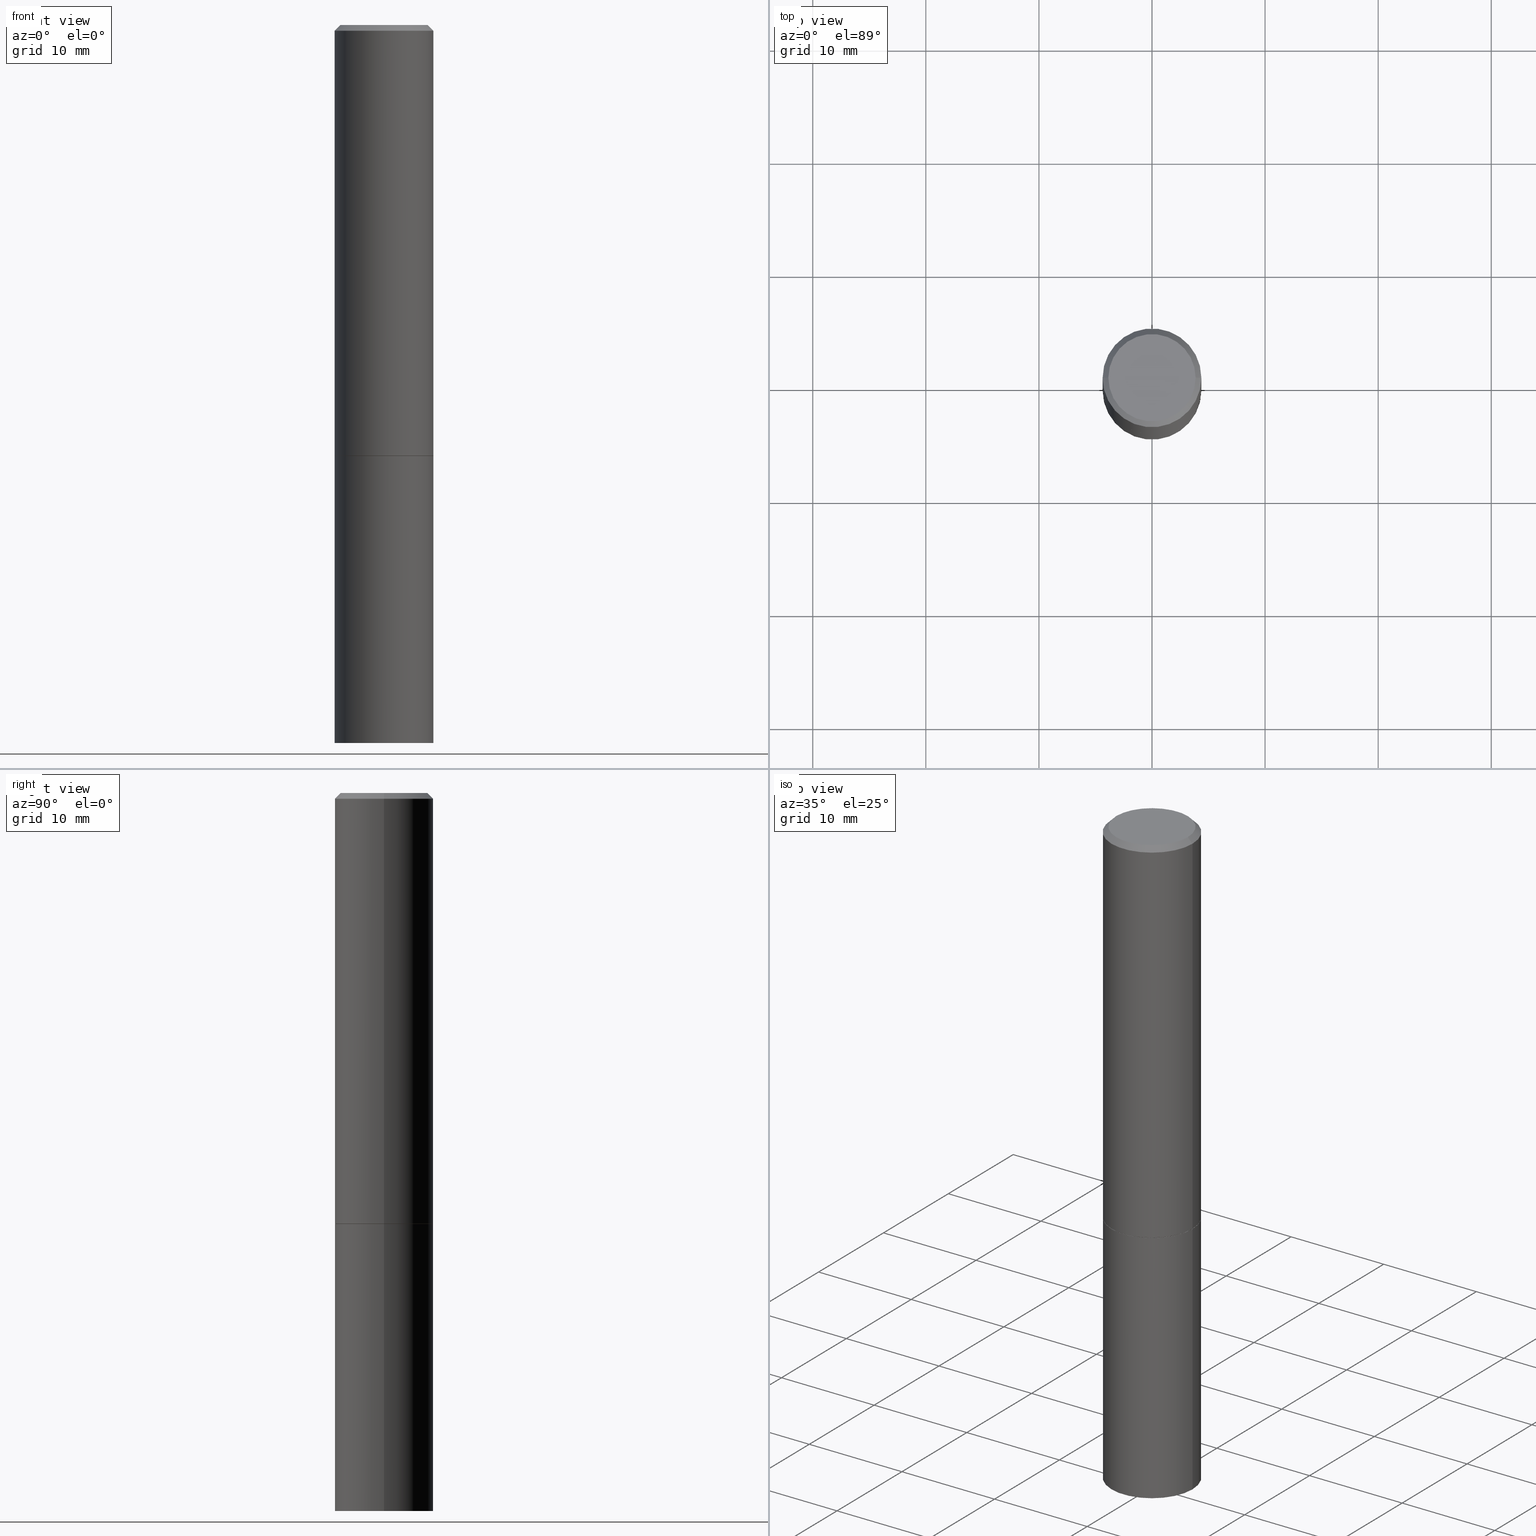
[diagram: canonical four-view strip — front | top / right | iso, engineering-drawing reading convention]
A machine part, canonical four-view strip (front | top / right | iso — engineering-drawing reading convention). The complete STEP part file that produces these views, byte-faithful:
ISO-10303-21;
HEADER;
FILE_DESCRIPTION (( 'STEP AP203' ),
    '1' );
FILE_NAME ('30143.STEP',
    '2023-03-21T20:22:57',
    ( '' ),
    ( '' ),
    'SwSTEP 2.0',
    'SolidWorks 2022',
    '' );
FILE_SCHEMA (( 'CONFIG_CONTROL_DESIGN' ));
ENDSEC;

DATA;
#1 = CARTESIAN_POINT ( 'NONE',  ( 4.890937612370283668E-31, -6.982962677686305168E-17, -0.02000000000000004205 ) ) ;
#2 = CARTESIAN_POINT ( 'NONE',  ( 1.200371284294305726E-15, 0.1718999999999947514, -1.500000000000000666 ) ) ;
#3 = ORIENTED_EDGE ( 'NONE', *, *, #88, .T. ) ;
#4 = DIRECTION ( 'NONE',  ( -2.445468806185136877E-29, 3.491481338843145188E-15, 1.000000000000000000 ) ) ;
#5 = EDGE_CURVE ( 'NONE', #55, #303, #324, .T. ) ;
#6 =( CONVERSION_BASED_UNIT ( 'INCH', #167 ) LENGTH_UNIT ( ) NAMED_UNIT ( #236 ) );
#7 = VERTEX_POINT ( 'NONE', #295 ) ;
#8 = PERSON ( 'UNSPECIFIED', 'UNSPECIFIED', 'UNSPECIFIED', ('UNSPECIFIED'), ('UNSPECIFIED'), ('UNSPECIFIED') ) ;
#9 = DIRECTION ( 'NONE',  ( -2.445468806185136597E-29, 3.491481338843145583E-15, 1.000000000000000000 ) ) ;
#10 = ORIENTED_EDGE ( 'NONE', *, *, #206, .T. ) ;
#11 = AXIS2_PLACEMENT_3D ( 'NONE', #349, #291, #112 ) ;
#12 = EDGE_LOOP ( 'NONE', ( #260, #268, #53, #87 ) ) ;
#13 = DIRECTION ( 'NONE',  ( 0.9986295347545742773, -7.033825938271998700E-15, -0.05233595624293709697 ) ) ;
#14 = DIRECTION ( 'NONE',  ( 1.000000000000000000, -6.982962677686266711E-15, 4.876176775795936353E-29 ) ) ;
#15 = ORIENTED_EDGE ( 'NONE', *, *, #185, .F. ) ;
#16 = CIRCLE ( 'NONE', #119, 0.1718999999999999695 ) ;
#17 = CARTESIAN_POINT ( 'NONE',  ( -1.043851414335219820E-46, 1.490343170380447200E-32, 4.268512490100411279E-18 ) ) ;
#18 = COORDINATED_UNIVERSAL_TIME_OFFSET ( 5, 0, .BEHIND. ) ;
#19 = DIRECTION ( 'NONE',  ( 2.438088387897960049E-29, -3.491481338843145188E-15, -1.000000000000000000 ) ) ;
#20 = ADVANCED_FACE ( 'NONE', ( #110 ), #30, .T. ) ;
#21 = COORDINATED_UNIVERSAL_TIME_OFFSET ( 5, 0, .BEHIND. ) ;
#22 = AXIS2_PLACEMENT_3D ( 'NONE', #31, #270, #124 ) ;
#23 = PERSON_AND_ORGANIZATION ( #8, #36 ) ;
#24 = PRODUCT ( '30143', '30143', '', ( #362 ) ) ;
#25 = DIRECTION ( 'NONE',  ( 1.000000000000000000, -6.982962677686268288E-15, 0.000000000000000000 ) ) ;
#26 = CARTESIAN_POINT ( 'NONE',  ( 6.091501137599692669E-29, -8.697449296122696863E-15, -2.490991102741246355 ) ) ;
#27 = CIRCLE ( 'NONE', #284, 0.1718999999999999695 ) ;
#28 = LOCAL_TIME ( 16, 22, 57.00000000000000000, #21 ) ;
#29 = ADVANCED_BREP_SHAPE_REPRESENTATION ( '30143', ( #122, #135, #130 ), #247 ) ;
#30 = CYLINDRICAL_SURFACE ( 'NONE', #48, 0.1718999999999998862 ) ;
#31 = CARTESIAN_POINT ( 'NONE',  ( 3.668203209277704895E-29, -5.237222008264718177E-15, -1.500000000000000222 ) ) ;
#32 = CYLINDRICAL_SURFACE ( 'NONE', #169, 0.1718999999999998862 ) ;
#33 = EDGE_LOOP ( 'NONE', ( #153, #39, #75 ) ) ;
#34 = CARTESIAN_POINT ( 'NONE',  ( 1.023699404943461720E-27, -1.461571441804904557E-13, -41.86106984289872912 ) ) ;
#35 = DIRECTION ( 'NONE',  ( 0.000000000000000000, 0.000000000000000000, 1.000000000000000000 ) ) ;
#36 = ORGANIZATION ( 'UNSPECIFIED', 'UNSPECIFIED', '' ) ;
#37 = LOCAL_TIME ( 16, 22, 57.00000000000000000, #172 ) ;
#38 = DIRECTION ( 'NONE',  ( -2.445468806185136597E-29, 3.491481338843145583E-15, 1.000000000000000000 ) ) ;
#39 = ORIENTED_EDGE ( 'NONE', *, *, #227, .T. ) ;
#40 = APPROVAL_DATE_TIME ( #377, #205 ) ;
#41 = VECTOR ( 'NONE', #95, 39.37007874015748143 ) ;
#42 = EDGE_CURVE ( 'NONE', #303, #55, #99, .T. ) ;
#43 = CC_DESIGN_PERSON_AND_ORGANIZATION_ASSIGNMENT ( #74, #198, ( #113 ) ) ;
#44 = ADVANCED_FACE ( 'NONE', ( #262 ), #145, .T. ) ;
#45 = PERSON_AND_ORGANIZATION_ROLE ( 'creator' ) ;
#46 = PERSON_AND_ORGANIZATION ( #8, #36 ) ;
#47 = VECTOR ( 'NONE', #120, 39.37007874015748143 ) ;
#48 = AXIS2_PLACEMENT_3D ( 'NONE', #85, #322, #346 ) ;
#49 = EDGE_CURVE ( 'NONE', #106, #238, #178, .T. ) ;
#50 = ADVANCED_FACE ( 'NONE', ( #77 ), #289, .T. ) ;
#51 = PRODUCT_DEFINITION_FORMATION_WITH_SPECIFIED_SOURCE ( 'ANY', '', #24, .NOT_KNOWN. ) ;
#52 = CLOSED_SHELL ( 'NONE', ( #50, #20, #44, #132, #326, #71, #251, #383 ) ) ;
#53 = ORIENTED_EDGE ( 'NONE', *, *, #42, .F. ) ;
#54 = VERTEX_POINT ( 'NONE', #26 ) ;
#55 = VERTEX_POINT ( 'NONE', #150 ) ;
#56 = CARTESIAN_POINT ( 'NONE',  ( -0.1708999999999999686, -4.022904472850707379E-15, -1.500000000000000222 ) ) ;
#57 = ORIENTED_EDGE ( 'NONE', *, *, #206, .F. ) ;
#58 = DIRECTION ( 'NONE',  ( -2.445468806185136597E-29, 3.491481338843145583E-15, 1.000000000000000000 ) ) ;
#59 = CIRCLE ( 'NONE', #73, 0.1718999999999998030 ) ;
#60 = VECTOR ( 'NONE', #166, 39.37007874015748143 ) ;
#61 = VERTEX_POINT ( 'NONE', #116 ) ;
#62 = PERSON_AND_ORGANIZATION_ROLE ( 'design_owner' ) ;
#63 = PLANE ( 'NONE',  #22 ) ;
#64 = DIRECTION ( 'NONE',  ( 2.445468806185136597E-29, -3.491481338843145583E-15, -1.000000000000000000 ) ) ;
#65 = AXIS2_PLACEMENT_3D ( 'NONE', #2, #19, #287 ) ;
#66 = CARTESIAN_POINT ( 'NONE',  ( -0.1718999999999999695, -1.430357114079755851E-15, -1.499000000000000110 ) ) ;
#67 = CARTESIAN_POINT ( 'NONE',  ( 0.1718999999999999695, -6.437593292558987418E-15, -1.500000000000000222 ) ) ;
#68 = CARTESIAN_POINT ( 'NONE',  ( 0.1718999999999998030, -1.249149232593788003E-15, -0.02000000000000004205 ) ) ;
#69 = APPROVAL_ROLE ( '' ) ;
#70 = COORDINATED_UNIVERSAL_TIME_OFFSET ( 5, 0, .BEHIND. ) ;
#71 = ADVANCED_FACE ( 'NONE', ( #235 ), #218, .T. ) ;
#72 = DIRECTION ( 'NONE',  ( -1.000000000000000000, 6.982962677686267499E-15, 0.000000000000000000 ) ) ;
#73 = AXIS2_PLACEMENT_3D ( 'NONE', #1, #128, #133 ) ;
#74 = PERSON_AND_ORGANIZATION ( #8, #36 ) ;
#75 = ORIENTED_EDGE ( 'NONE', *, *, #318, .F. ) ;
#76 = LINE ( 'NONE', #191, #240 ) ;
#77 = FACE_OUTER_BOUND ( 'NONE', #203, .T. ) ;
#78 = CARTESIAN_POINT ( 'NONE',  ( 4.890937612370283668E-31, -6.982962677686305168E-17, -0.02000000000000004205 ) ) ;
#79 = VERTEX_POINT ( 'NONE', #360 ) ;
#80 = CARTESIAN_POINT ( 'NONE',  ( 0.1718999999999998862, -1.200371284294268255E-15, 8.382147877593207473E-30 ) ) ;
#81 = CARTESIAN_POINT ( 'NONE',  ( 3.668203209277704895E-29, -5.237222008264718177E-15, -1.500000000000000222 ) ) ;
#82 = VECTOR ( 'NONE', #100, 39.37007874015748854 ) ;
#83 = LOCAL_TIME ( 16, 22, 57.00000000000000000, #70 ) ;
#84 = CARTESIAN_POINT ( 'NONE',  ( -0.1718999999999998030, 1.130541657517404957E-15, -0.02000000000000004205 ) ) ;
#85 = CARTESIAN_POINT ( 'NONE',  ( 0.000000000000000000, 0.000000000000000000, 0.000000000000000000 ) ) ;
#86 = LINE ( 'NONE', #56, #189 ) ;
#87 = ORIENTED_EDGE ( 'NONE', *, *, #186, .F. ) ;
#88 = EDGE_CURVE ( 'NONE', #79, #211, #347, .T. ) ;
#89 = VERTEX_POINT ( 'NONE', #84 ) ;
#90 = DIRECTION ( 'NONE',  ( 1.000000000000000000, -6.982962677686266711E-15, 4.876272761356889874E-29 ) ) ;
#91 = AXIS2_PLACEMENT_3D ( 'NONE', #311, #64, #278 ) ;
#92 = DIRECTION ( 'NONE',  ( -1.000000000000000000, 6.982962677686265922E-15, -4.876176775795935793E-29 ) ) ;
#93 = CARTESIAN_POINT ( 'NONE',  ( 1.060712030740542448E-15, 0.1518999999999998129, -5.282217591252229826E-16 ) ) ;
#94 = ORIENTED_EDGE ( 'NONE', *, *, #292, .T. ) ;
#95 = DIRECTION ( 'NONE',  ( -2.445468806185136877E-29, 3.491481338843145188E-15, 1.000000000000000000 ) ) ;
#96 = CARTESIAN_POINT ( 'NONE',  ( -0.1718999999999998030, 1.130541657517404957E-15, -0.02000000000000004205 ) ) ;
#97 = CARTESIAN_POINT ( 'NONE',  ( -0.1718999999999998862, 1.221422962771611411E-15, -8.455649420148177574E-30 ) ) ;
#98 = CONICAL_SURFACE ( 'NONE', #257, 751.2258538476644389, 1.518436449235073482 ) ;
#99 = CIRCLE ( 'NONE', #321, 0.1718999999999999695 ) ;
#100 = DIRECTION ( 'NONE',  ( 0.7071067811865232589, -2.468850131082003836E-15, 0.7071067811865715536 ) ) ;
#101 = CARTESIAN_POINT ( 'NONE',  ( 0.000000000000000000, 0.000000000000000000, 0.000000000000000000 ) ) ;
#102 = COORDINATED_UNIVERSAL_TIME_OFFSET ( 5, 0, .BEHIND. ) ;
#103 = DATE_AND_TIME ( #109, #37 ) ;
#104 = APPROVAL_PERSON_ORGANIZATION ( #188, #123, #69 ) ;
#105 = APPROVAL_DATE_TIME ( #103, #193 ) ;
#106 = VERTEX_POINT ( 'NONE', #207 ) ;
#107 = EDGE_CURVE ( 'NONE', #54, #238, #155, .T. ) ;
#108 = EDGE_CURVE ( 'NONE', #7, #61, #379, .T. ) ;
#109 = CALENDAR_DATE ( 2023, 21, 3 ) ;
#110 = FACE_OUTER_BOUND ( 'NONE', #242, .T. ) ;
#111 = CC_DESIGN_APPROVAL ( #123, ( #113 ) ) ;
#112 = DIRECTION ( 'NONE',  ( 1.000000000000000000, -6.982962677686268288E-15, 0.000000000000000000 ) ) ;
#113 = PRODUCT_DEFINITION ( 'UNKNOWN', '', #51, #157 ) ;
#114 = EDGE_CURVE ( 'NONE', #61, #279, #86, .T. ) ;
#115 = FACE_OUTER_BOUND ( 'NONE', #121, .T. ) ;
#116 = CARTESIAN_POINT ( 'NONE',  ( -0.1708999999999999686, -4.017606018502484977E-15, -1.500000000000000222 ) ) ;
#117 = ORIENTED_EDGE ( 'NONE', *, *, #186, .T. ) ;
#118 = EDGE_LOOP ( 'NONE', ( #297, #265, #161, #202 ) ) ;
#119 = AXIS2_PLACEMENT_3D ( 'NONE', #141, #312, #336 ) ;
#120 = DIRECTION ( 'NONE',  ( -0.9986295347545742773, 6.790662755453666100E-15, -0.05233595624293709697 ) ) ;
#121 = EDGE_LOOP ( 'NONE', ( #261, #359, #355, #180 ) ) ;
#122 = MANIFOLD_SOLID_BREP ( 'Body-Move/Copy2[1]', #277 ) ;
#123 = APPROVAL ( #171, 'UNSPECIFIED' ) ;
#124 = DIRECTION ( 'NONE',  ( 1.000000000000000000, -6.982962677686265922E-15, 4.876176775795935793E-29 ) ) ;
#125 = CARTESIAN_POINT ( 'NONE',  ( -1.043851414335219820E-46, 1.490343170380447200E-32, 4.268512490100411279E-18 ) ) ;
#126 = ORIENTED_EDGE ( 'NONE', *, *, #108, .T. ) ;
#127 = APPLICATION_PROTOCOL_DEFINITION ( 'international standard', 'config_control_design', 1994, #282 ) ;
#128 = DIRECTION ( 'NONE',  ( -2.445468806185136597E-29, 3.491481338843145583E-15, 1.000000000000000000 ) ) ;
#129 = VERTEX_POINT ( 'NONE', #380 ) ;
#130 = AXIS2_PLACEMENT_3D ( 'NONE', #101, #35, #343 ) ;
#131 = DIRECTION ( 'NONE',  ( -2.445468806185136597E-29, 3.491481338843145583E-15, 1.000000000000000000 ) ) ;
#132 = ADVANCED_FACE ( 'NONE', ( #115 ), #224, .T. ) ;
#133 = DIRECTION ( 'NONE',  ( 1.000000000000000000, -6.982962677686267499E-15, 0.000000000000000000 ) ) ;
#134 = ADVANCED_FACE ( 'NONE', ( #320 ), #98, .F. ) ;
#135 = MANIFOLD_SOLID_BREP ( 'Body-Move/Copy2[2]', #52 ) ;
#136 = DIRECTION ( 'NONE',  ( -2.445468806185136597E-29, 3.491481338843145583E-15, 1.000000000000000000 ) ) ;
#137 = FACE_OUTER_BOUND ( 'NONE', #12, .T. ) ;
#138 = ORIENTED_EDGE ( 'NONE', *, *, #108, .F. ) ;
#139 = DIRECTION ( 'NONE',  ( -2.445468806185136877E-29, 3.491481338843145188E-15, 1.000000000000000000 ) ) ;
#140 = FACE_OUTER_BOUND ( 'NONE', #154, .T. ) ;
#141 = CARTESIAN_POINT ( 'NONE',  ( 3.665757740471519853E-29, -5.233730526925875958E-15, -1.499000000000000110 ) ) ;
#142 = CC_DESIGN_APPROVAL ( #205, ( #51 ) ) ;
#143 = CALENDAR_DATE ( 2023, 21, 3 ) ;
#144 = FACE_OUTER_BOUND ( 'NONE', #361, .T. ) ;
#145 = CONICAL_SURFACE ( 'NONE', #163, 0.1718999999999998030, 0.7853981633974469467 ) ;
#146 = EDGE_CURVE ( 'NONE', #238, #55, #367, .T. ) ;
#147 = APPROVAL_STATUS ( 'not_yet_approved' ) ;
#148 = PERSON_AND_ORGANIZATION_ROLE ( 'classification_officer' ) ;
#149 = AXIS2_PLACEMENT_3D ( 'NONE', #125, #267, #352 ) ;
#150 = CARTESIAN_POINT ( 'NONE',  ( -0.1718999999999999695, -5.761539714914678571E-15, -1.500000000000000222 ) ) ;
#151 = ORIENTED_EDGE ( 'NONE', *, *, #272, .F. ) ;
#152 = DIRECTION ( 'NONE',  ( -2.445468806185136597E-29, 3.491481338843145583E-15, 1.000000000000000000 ) ) ;
#153 = ORIENTED_EDGE ( 'NONE', *, *, #107, .F. ) ;
#154 = EDGE_LOOP ( 'NONE', ( #266, #3 ) ) ;
#155 = LINE ( 'NONE', #387, #47 ) ;
#156 = EDGE_CURVE ( 'NONE', #89, #334, #59, .T. ) ;
#157 = DESIGN_CONTEXT ( 'detailed design', #159, 'design' ) ;
#158 = VECTOR ( 'NONE', #4, 39.37007874015748143 ) ;
#159 = APPLICATION_CONTEXT ( 'configuration controlled 3d designs of mechanical parts and assemblies' ) ;
#160 = LINE ( 'NONE', #97, #276 ) ;
#161 = ORIENTED_EDGE ( 'NONE', *, *, #185, .T. ) ;
#162 = ADVANCED_FACE ( 'NONE', ( #137 ), #212, .T. ) ;
#163 = AXIS2_PLACEMENT_3D ( 'NONE', #78, #201, #264 ) ;
#164 = DIRECTION ( 'NONE',  ( 1.000000000000000000, -6.982962677686267499E-15, 0.000000000000000000 ) ) ;
#165 = DIRECTION ( 'NONE',  ( 1.000000000000000000, -6.982962677686265922E-15, 4.876176775795935232E-29 ) ) ;
#166 = DIRECTION ( 'NONE',  ( 0.7071067811865465735, -7.319954787623252890E-15, -0.7071067811865484609 ) ) ;
#167 = LENGTH_MEASURE_WITH_UNIT ( LENGTH_MEASURE( 0.02539999999999999897 ), #273 );
#168 = CARTESIAN_POINT ( 'NONE',  ( 0.1708999999999999686, -6.430610329881301404E-15, -1.500000000000000222 ) ) ;
#169 = AXIS2_PLACEMENT_3D ( 'NONE', #307, #366, #165 ) ;
#170 = DATE_TIME_ROLE ( 'classification_date' ) ;
#171 = APPROVAL_STATUS ( 'not_yet_approved' ) ;
#172 = COORDINATED_UNIVERSAL_TIME_OFFSET ( 5, 0, .BEHIND. ) ;
#173 = CALENDAR_DATE ( 2023, 21, 3 ) ;
#174 = CIRCLE ( 'NONE', #293, 0.1718999999999998030 ) ;
#175 = APPROVAL_STATUS ( 'not_yet_approved' ) ;
#176 = CARTESIAN_POINT ( 'NONE',  ( 3.668203209277704895E-29, -5.237222008264718177E-15, -1.500000000000000222 ) ) ;
#177 = ORIENTED_EDGE ( 'NONE', *, *, #292, .F. ) ;
#178 = CIRCLE ( 'NONE', #11, 0.1718999999999999695 ) ;
#179 = ORIENTED_EDGE ( 'NONE', *, *, #5, .F. ) ;
#180 = ORIENTED_EDGE ( 'NONE', *, *, #156, .T. ) ;
#181 = CC_DESIGN_PERSON_AND_ORGANIZATION_ASSIGNMENT ( #332, #62, ( #24 ) ) ;
#182 = ORIENTED_EDGE ( 'NONE', *, *, #146, .F. ) ;
#183 = CIRCLE ( 'NONE', #308, 0.1518999999999998129 ) ;
#184 = DIRECTION ( 'NONE',  ( 1.000000000000000000, -6.982962677686268288E-15, 0.000000000000000000 ) ) ;
#185 = EDGE_CURVE ( 'NONE', #129, #334, #226, .T. ) ;
#186 = EDGE_CURVE ( 'NONE', #106, #303, #76, .T. ) ;
#187 = CARTESIAN_POINT ( 'NONE',  ( 6.113672015462842613E-29, -8.728703347107864943E-15, -2.500000000000000000 ) ) ;
#188 = PERSON_AND_ORGANIZATION ( #8, #36 ) ;
#189 = VECTOR ( 'NONE', #209, 39.37007874015748854 ) ;
#190 = FACE_OUTER_BOUND ( 'NONE', #118, .T. ) ;
#191 = CARTESIAN_POINT ( 'NONE',  ( 0.1718999999999999695, -1.200371284294269044E-15, 8.382147877593213079E-30 ) ) ;
#192 = DIRECTION ( 'NONE',  ( 2.438088387897960049E-29, -3.491481338843145188E-15, -1.000000000000000000 ) ) ;
#193 = APPROVAL ( #147, 'UNSPECIFIED' ) ;
#194 = LINE ( 'NONE', #68, #60 ) ;
#195 = AXIS2_PLACEMENT_3D ( 'NONE', #382, #378, #72 ) ;
#196 = CALENDAR_DATE ( 2023, 21, 3 ) ;
#197 = CC_DESIGN_SECURITY_CLASSIFICATION ( #331, ( #51 ) ) ;
#198 = PERSON_AND_ORGANIZATION_ROLE ( 'creator' ) ;
#199 = AXIS2_PLACEMENT_3D ( 'NONE', #241, #243, #358 ) ;
#200 = CARTESIAN_POINT ( 'NONE',  ( 3.668203209277704895E-29, -5.237222008264718177E-15, -1.500000000000000222 ) ) ;
#201 = DIRECTION ( 'NONE',  ( 2.445468806185136597E-29, -3.491481338843145583E-15, -1.000000000000000000 ) ) ;
#202 = ORIENTED_EDGE ( 'NONE', *, *, #156, .F. ) ;
#203 = EDGE_LOOP ( 'NONE', ( #126, #215, #234, #57 ) ) ;
#204 = ORIENTED_EDGE ( 'NONE', *, *, #49, .F. ) ;
#205 = APPROVAL ( #175, 'UNSPECIFIED' ) ;
#206 = EDGE_CURVE ( 'NONE', #7, #129, #313, .T. ) ;
#207 = CARTESIAN_POINT ( 'NONE',  ( 0.1718999999999998030, -9.908022952924788464E-15, -2.500000000000000000 ) ) ;
#208 = ORIENTED_EDGE ( 'NONE', *, *, #42, .T. ) ;
#209 = DIRECTION ( 'NONE',  ( -0.7071067811865232589, 7.493145998870265808E-15, 0.7071067811865715536 ) ) ;
#210 = ORIENTED_EDGE ( 'NONE', *, *, #306, .F. ) ;
#211 = VERTEX_POINT ( 'NONE', #283 ) ;
#212 = CYLINDRICAL_SURFACE ( 'NONE', #319, 0.1718999999999999695 ) ;
#213 = ORIENTED_EDGE ( 'NONE', *, *, #88, .F. ) ;
#214 = PLANE ( 'NONE',  #65 ) ;
#215 = ORIENTED_EDGE ( 'NONE', *, *, #114, .T. ) ;
#216 = EDGE_CURVE ( 'NONE', #211, #79, #183, .T. ) ;
#217 = DIRECTION ( 'NONE',  ( 1.000000000000000000, -6.982962677686266711E-15, 4.876176775795936353E-29 ) ) ;
#218 = CONICAL_SURFACE ( 'NONE', #231, 0.1708999999999999686, 0.7853981633974141952 ) ;
#219 = CC_DESIGN_PERSON_AND_ORGANIZATION_ASSIGNMENT ( #23, #348, ( #51 ) ) ;
#220 = CARTESIAN_POINT ( 'NONE',  ( 4.890937612370283668E-31, -6.982962677686305168E-17, -0.02000000000000004205 ) ) ;
#221 = DIRECTION ( 'NONE',  ( 2.445468806185136597E-29, -3.491481338843145583E-15, -1.000000000000000000 ) ) ;
#222 = EDGE_LOOP ( 'NONE', ( #138, #177 ) ) ;
#223 =( NAMED_UNIT ( * ) PLANE_ANGLE_UNIT ( ) SI_UNIT ( $, .RADIAN. ) );
#224 = CONICAL_SURFACE ( 'NONE', #195, 0.1718999999999998030, 0.7853981633974469467 ) ;
#225 = CALENDAR_DATE ( 2023, 21, 3 ) ;
#226 = LINE ( 'NONE', #80, #158 ) ;
#227 = EDGE_CURVE ( 'NONE', #54, #106, #248, .T. ) ;
#228 = DIRECTION ( 'NONE',  ( 1.000000000000000000, -6.982962677686268288E-15, 0.000000000000000000 ) ) ;
#229 = PERSON_AND_ORGANIZATION ( #8, #36 ) ;
#230 = CC_DESIGN_DATE_AND_TIME_ASSIGNMENT ( #317, #314, ( #113 ) ) ;
#231 = AXIS2_PLACEMENT_3D ( 'NONE', #246, #390, #237 ) ;
#232 = AXIS2_PLACEMENT_3D ( 'NONE', #335, #371, #14 ) ;
#233 = DIRECTION ( 'NONE',  ( 1.000000000000000000, -6.982962677686267499E-15, 0.000000000000000000 ) ) ;
#234 = ORIENTED_EDGE ( 'NONE', *, *, #280, .F. ) ;
#235 = FACE_OUTER_BOUND ( 'NONE', #274, .T. ) ;
#236 = DIMENSIONAL_EXPONENTS ( 1.000000000000000000, 0.000000000000000000, 0.000000000000000000, 0.000000000000000000, 0.000000000000000000, 0.000000000000000000, 0.000000000000000000 ) ;
#237 = DIRECTION ( 'NONE',  ( 1.000000000000000000, -6.982962677686267499E-15, 0.000000000000000000 ) ) ;
#238 = VERTEX_POINT ( 'NONE', #252 ) ;
#239 = ORIENTED_EDGE ( 'NONE', *, *, #114, .F. ) ;
#240 = VECTOR ( 'NONE', #139, 39.37007874015748143 ) ;
#241 = CARTESIAN_POINT ( 'NONE',  ( 3.668203209277704895E-29, -5.237222008264718177E-15, -1.500000000000000222 ) ) ;
#242 = EDGE_LOOP ( 'NONE', ( #351, #384, #210, #15 ) ) ;
#243 = DIRECTION ( 'NONE',  ( -2.445468806185136597E-29, 3.491481338843145583E-15, 1.000000000000000000 ) ) ;
#244 = DIRECTION ( 'NONE',  ( -1.000000000000000000, 6.982962677686265922E-15, 0.000000000000000000 ) ) ;
#245 = DIRECTION ( 'NONE',  ( -2.445468806185136597E-29, 3.491481338843145583E-15, 1.000000000000000000 ) ) ;
#246 = CARTESIAN_POINT ( 'NONE',  ( 3.668203209277704895E-29, -5.237222008264718177E-15, -1.500000000000000222 ) ) ;
#247 =( GEOMETRIC_REPRESENTATION_CONTEXT ( 3 ) GLOBAL_UNCERTAINTY_ASSIGNED_CONTEXT ( ( #327 ) ) GLOBAL_UNIT_ASSIGNED_CONTEXT ( ( #6, #223, #249 ) ) REPRESENTATION_CONTEXT ( 'NONE', 'WORKASPACE' ) );
#248 = LINE ( 'NONE', #309, #269 ) ;
#249 =( NAMED_UNIT ( * ) SI_UNIT ( $, .STERADIAN. ) SOLID_ANGLE_UNIT ( ) );
#250 = CARTESIAN_POINT ( 'NONE',  ( 0.1718999999999998030, -1.249149232593788003E-15, -0.02000000000000004205 ) ) ;
#251 = ADVANCED_FACE ( 'NONE', ( #368 ), #63, .F. ) ;
#252 = CARTESIAN_POINT ( 'NONE',  ( -0.1718999999999998030, -7.528332062813596490E-15, -2.500000000000000000 ) ) ;
#253 = CYLINDRICAL_SURFACE ( 'NONE', #232, 0.1718999999999999695 ) ;
#254 = VECTOR ( 'NONE', #338, 39.37007874015748143 ) ;
#255 = APPROVAL_DATE_TIME ( #286, #123 ) ;
#256 = PERSON_AND_ORGANIZATION ( #8, #36 ) ;
#257 = AXIS2_PLACEMENT_3D ( 'NONE', #34, #221, #244 ) ;
#258 = CC_DESIGN_APPROVAL ( #193, ( #331 ) ) ;
#259 = EDGE_CURVE ( 'NONE', #279, #129, #323, .T. ) ;
#260 = ORIENTED_EDGE ( 'NONE', *, *, #49, .T. ) ;
#261 = ORIENTED_EDGE ( 'NONE', *, *, #316, .F. ) ;
#262 = FACE_OUTER_BOUND ( 'NONE', #325, .T. ) ;
#263 = EDGE_LOOP ( 'NONE', ( #208, #298 ) ) ;
#264 = DIRECTION ( 'NONE',  ( -1.000000000000000000, 6.982962677686267499E-15, 0.000000000000000000 ) ) ;
#265 = ORIENTED_EDGE ( 'NONE', *, *, #259, .T. ) ;
#266 = ORIENTED_EDGE ( 'NONE', *, *, #216, .T. ) ;
#267 = DIRECTION ( 'NONE',  ( -2.445468806185136597E-29, 3.491481338843145583E-15, 1.000000000000000000 ) ) ;
#268 = ORIENTED_EDGE ( 'NONE', *, *, #146, .T. ) ;
#269 = VECTOR ( 'NONE', #13, 39.37007874015748143 ) ;
#270 = DIRECTION ( 'NONE',  ( -2.438088387897960049E-29, 3.491481338843145188E-15, 1.000000000000000000 ) ) ;
#271 = FACE_OUTER_BOUND ( 'NONE', #263, .T. ) ;
#272 = EDGE_CURVE ( 'NONE', #211, #89, #301, .T. ) ;
#273 =( LENGTH_UNIT ( ) NAMED_UNIT ( * ) SI_UNIT ( $, .METRE. ) );
#274 = EDGE_LOOP ( 'NONE', ( #239, #94, #10, #389 ) ) ;
#275 = APPLICATION_PROTOCOL_DEFINITION ( 'international standard', 'config_control_design', 1994, #159 ) ;
#276 = VECTOR ( 'NONE', #341, 39.37007874015748143 ) ;
#277 = CLOSED_SHELL ( 'NONE', ( #162, #134, #300, #305, #299 ) ) ;
#278 = DIRECTION ( 'NONE',  ( -1.000000000000000000, 6.982962677686265922E-15, 0.000000000000000000 ) ) ;
#279 = VERTEX_POINT ( 'NONE', #66 ) ;
#280 = EDGE_CURVE ( 'NONE', #129, #279, #16, .T. ) ;
#281 = DIRECTION ( 'NONE',  ( 1.000000000000000000, -6.982962677686268288E-15, 0.000000000000000000 ) ) ;
#282 = APPLICATION_CONTEXT ( 'configuration controlled 3d designs of mechanical parts and assemblies' ) ;
#283 = CARTESIAN_POINT ( 'NONE',  ( -0.1518999999999998129, 1.095626844128973702E-15, 4.268512490092870878E-18 ) ) ;
#284 = AXIS2_PLACEMENT_3D ( 'NONE', #187, #136, #281 ) ;
#285 = APPROVAL_PERSON_ORGANIZATION ( #46, #205, #372 ) ;
#286 = DATE_AND_TIME ( #173, #28 ) ;
#287 = DIRECTION ( 'NONE',  ( -1.000000000000000000, 6.982962677686265922E-15, -4.876176775795935793E-29 ) ) ;
#288 = SHAPE_DEFINITION_REPRESENTATION ( #365, #29 ) ;
#289 = CONICAL_SURFACE ( 'NONE', #315, 0.1708999999999999686, 0.7853981633974141952 ) ;
#290 = SECURITY_CLASSIFICATION_LEVEL ( 'unclassified' ) ;
#291 = DIRECTION ( 'NONE',  ( -2.445468806185136597E-29, 3.491481338843145583E-15, 1.000000000000000000 ) ) ;
#292 = EDGE_CURVE ( 'NONE', #61, #7, #339, .T. ) ;
#293 = AXIS2_PLACEMENT_3D ( 'NONE', #220, #38, #337 ) ;
#294 = LOCAL_TIME ( 16, 22, 57.00000000000000000, #18 ) ;
#295 = CARTESIAN_POINT ( 'NONE',  ( 0.1708999999999999686, -6.430610329881301404E-15, -1.500000000000000222 ) ) ;
#296 = ORIENTED_EDGE ( 'NONE', *, *, #227, .F. ) ;
#297 = ORIENTED_EDGE ( 'NONE', *, *, #350, .F. ) ;
#298 = ORIENTED_EDGE ( 'NONE', *, *, #5, .T. ) ;
#299 = ADVANCED_FACE ( 'NONE', ( #271 ), #214, .F. ) ;
#300 = ADVANCED_FACE ( 'NONE', ( #144 ), #388, .F. ) ;
#301 = LINE ( 'NONE', #96, #254 ) ;
#302 = EDGE_LOOP ( 'NONE', ( #182, #329, #117, #179 ) ) ;
#303 = VERTEX_POINT ( 'NONE', #67 ) ;
#304 = FACE_OUTER_BOUND ( 'NONE', #302, .T. ) ;
#305 = ADVANCED_FACE ( 'NONE', ( #304 ), #253, .T. ) ;
#306 = EDGE_CURVE ( 'NONE', #334, #89, #174, .T. ) ;
#307 = CARTESIAN_POINT ( 'NONE',  ( 0.000000000000000000, 0.000000000000000000, 0.000000000000000000 ) ) ;
#308 = AXIS2_PLACEMENT_3D ( 'NONE', #17, #245, #90 ) ;
#309 = CARTESIAN_POINT ( 'NONE',  ( 2.003456773862121688E-19, -8.697248950445370418E-15, -2.490991102741246355 ) ) ;
#310 = CARTESIAN_POINT ( 'NONE',  ( 3.668203209277704895E-29, -5.237222008264718177E-15, -1.500000000000000222 ) ) ;
#311 = CARTESIAN_POINT ( 'NONE',  ( 1.023699404943461720E-27, -1.461571441804904557E-13, -41.86106984289872912 ) ) ;
#312 = DIRECTION ( 'NONE',  ( -2.445468806185136597E-29, 3.491481338843145583E-15, 1.000000000000000000 ) ) ;
#313 = LINE ( 'NONE', #168, #82 ) ;
#314 = DATE_TIME_ROLE ( 'creation_date' ) ;
#315 = AXIS2_PLACEMENT_3D ( 'NONE', #81, #381, #233 ) ;
#316 = EDGE_CURVE ( 'NONE', #79, #334, #194, .T. ) ;
#317 = DATE_AND_TIME ( #143, #294 ) ;
#318 = EDGE_CURVE ( 'NONE', #238, #106, #27, .T. ) ;
#319 = AXIS2_PLACEMENT_3D ( 'NONE', #333, #9, #217 ) ;
#320 = FACE_OUTER_BOUND ( 'NONE', #33, .T. ) ;
#321 = AXIS2_PLACEMENT_3D ( 'NONE', #200, #152, #25 ) ;
#322 = DIRECTION ( 'NONE',  ( -2.445468806185136597E-29, 3.491481338843145583E-15, 1.000000000000000000 ) ) ;
#323 = CIRCLE ( 'NONE', #374, 0.1718999999999999695 ) ;
#324 = CIRCLE ( 'NONE', #375, 0.1718999999999999695 ) ;
#325 = EDGE_LOOP ( 'NONE', ( #213, #385, #356, #151 ) ) ;
#326 = ADVANCED_FACE ( 'NONE', ( #190 ), #32, .T. ) ;
#327 = UNCERTAINTY_MEASURE_WITH_UNIT (LENGTH_MEASURE( 1.000000000000000082E-05 ), #6, 'distance_accuracy_value', 'NONE');
#328 = CARTESIAN_POINT ( 'NONE',  ( 3.665757740471519853E-29, -5.233730526925875958E-15, -1.499000000000000110 ) ) ;
#329 = ORIENTED_EDGE ( 'NONE', *, *, #318, .T. ) ;
#330 = AXIS2_PLACEMENT_3D ( 'NONE', #93, #192, #92 ) ;
#331 = SECURITY_CLASSIFICATION ( '', '', #290 ) ;
#332 = PERSON_AND_ORGANIZATION ( #8, #36 ) ;
#333 = CARTESIAN_POINT ( 'NONE',  ( 0.000000000000000000, 0.000000000000000000, 0.000000000000000000 ) ) ;
#334 = VERTEX_POINT ( 'NONE', #250 ) ;
#335 = CARTESIAN_POINT ( 'NONE',  ( 0.000000000000000000, 0.000000000000000000, 0.000000000000000000 ) ) ;
#336 = DIRECTION ( 'NONE',  ( 1.000000000000000000, -6.982962677686268288E-15, 0.000000000000000000 ) ) ;
#337 = DIRECTION ( 'NONE',  ( 1.000000000000000000, -6.982962677686267499E-15, 0.000000000000000000 ) ) ;
#338 = DIRECTION ( 'NONE',  ( -0.7071067811865465735, 2.468850131082246805E-15, -0.7071067811865484609 ) ) ;
#339 = CIRCLE ( 'NONE', #353, 0.1708999999999999686 ) ;
#340 = APPROVAL_PERSON_ORGANIZATION ( #229, #193, #344 ) ;
#341 = DIRECTION ( 'NONE',  ( -2.445468806185136877E-29, 3.491481338843145188E-15, 1.000000000000000000 ) ) ;
#342 = CARTESIAN_POINT ( 'NONE',  ( -0.1718999999999999695, 1.221422962771612003E-15, -8.455649420148183180E-30 ) ) ;
#343 = DIRECTION ( 'NONE',  ( 1.000000000000000000, 0.000000000000000000, 0.000000000000000000 ) ) ;
#344 = APPROVAL_ROLE ( '' ) ;
#345 = CC_DESIGN_PERSON_AND_ORGANIZATION_ASSIGNMENT ( #376, #45, ( #51 ) ) ;
#346 = DIRECTION ( 'NONE',  ( 1.000000000000000000, -6.982962677686265922E-15, 4.876176775795935232E-29 ) ) ;
#347 = CIRCLE ( 'NONE', #149, 0.1518999999999998129 ) ;
#348 = PERSON_AND_ORGANIZATION_ROLE ( 'design_supplier' ) ;
#349 = CARTESIAN_POINT ( 'NONE',  ( 6.113672015462842613E-29, -8.728703347107864943E-15, -2.500000000000000000 ) ) ;
#350 = EDGE_CURVE ( 'NONE', #279, #89, #160, .T. ) ;
#351 = ORIENTED_EDGE ( 'NONE', *, *, #280, .T. ) ;
#352 = DIRECTION ( 'NONE',  ( 1.000000000000000000, -6.982962677686266711E-15, 4.876272761356889874E-29 ) ) ;
#353 = AXIS2_PLACEMENT_3D ( 'NONE', #310, #131, #164 ) ;
#354 = LOCAL_TIME ( 16, 22, 57.00000000000000000, #102 ) ;
#355 = ORIENTED_EDGE ( 'NONE', *, *, #272, .T. ) ;
#356 = ORIENTED_EDGE ( 'NONE', *, *, #306, .T. ) ;
#357 = DIRECTION ( 'NONE',  ( -2.445468806185136597E-29, 3.491481338843145583E-15, 1.000000000000000000 ) ) ;
#358 = DIRECTION ( 'NONE',  ( 1.000000000000000000, -6.982962677686267499E-15, 0.000000000000000000 ) ) ;
#359 = ORIENTED_EDGE ( 'NONE', *, *, #216, .F. ) ;
#360 = CARTESIAN_POINT ( 'NONE',  ( 0.1518999999999998129, -1.145629439227641220E-15, 4.268512490108125784E-18 ) ) ;
#361 = EDGE_LOOP ( 'NONE', ( #296, #363, #204 ) ) ;
#362 = MECHANICAL_CONTEXT ( 'NONE', #282, 'mechanical' ) ;
#363 = ORIENTED_EDGE ( 'NONE', *, *, #107, .T. ) ;
#364 = CC_DESIGN_DATE_AND_TIME_ASSIGNMENT ( #373, #170, ( #331 ) ) ;
#365 = PRODUCT_DEFINITION_SHAPE ( 'NONE', 'NONE',  #113 ) ;
#366 = DIRECTION ( 'NONE',  ( -2.445468806185136597E-29, 3.491481338843145583E-15, 1.000000000000000000 ) ) ;
#367 = LINE ( 'NONE', #342, #41 ) ;
#368 = FACE_OUTER_BOUND ( 'NONE', #222, .T. ) ;
#369 = PLANE ( 'NONE',  #330 ) ;
#370 = PRODUCT_RELATED_PRODUCT_CATEGORY ( 'detail', '', ( #24 ) ) ;
#371 = DIRECTION ( 'NONE',  ( -2.445468806185136597E-29, 3.491481338843145583E-15, 1.000000000000000000 ) ) ;
#372 = APPROVAL_ROLE ( '' ) ;
#373 = DATE_AND_TIME ( #225, #354 ) ;
#374 = AXIS2_PLACEMENT_3D ( 'NONE', #328, #58, #184 ) ;
#375 = AXIS2_PLACEMENT_3D ( 'NONE', #176, #357, #228 ) ;
#376 = PERSON_AND_ORGANIZATION ( #8, #36 ) ;
#377 = DATE_AND_TIME ( #196, #83 ) ;
#378 = DIRECTION ( 'NONE',  ( 2.445468806185136597E-29, -3.491481338843145583E-15, -1.000000000000000000 ) ) ;
#379 = CIRCLE ( 'NONE', #199, 0.1708999999999999686 ) ;
#380 = CARTESIAN_POINT ( 'NONE',  ( 0.1718999999999999695, -6.434101811220145200E-15, -1.499000000000000110 ) ) ;
#381 = DIRECTION ( 'NONE',  ( -2.445468806185136597E-29, 3.491481338843145583E-15, 1.000000000000000000 ) ) ;
#382 = CARTESIAN_POINT ( 'NONE',  ( 4.890937612370283668E-31, -6.982962677686305168E-17, -0.02000000000000004205 ) ) ;
#383 = ADVANCED_FACE ( 'NONE', ( #140 ), #369, .F. ) ;
#384 = ORIENTED_EDGE ( 'NONE', *, *, #350, .T. ) ;
#385 = ORIENTED_EDGE ( 'NONE', *, *, #316, .T. ) ;
#386 = CC_DESIGN_PERSON_AND_ORGANIZATION_ASSIGNMENT ( #256, #148, ( #331 ) ) ;
#387 = CARTESIAN_POINT ( 'NONE',  ( -2.003456772643793331E-19, -8.697248950445370418E-15, -2.490991102741246355 ) ) ;
#388 = CONICAL_SURFACE ( 'NONE', #91, 751.2258538476644389, 1.518436449235073482 ) ;
#389 = ORIENTED_EDGE ( 'NONE', *, *, #259, .F. ) ;
#390 = DIRECTION ( 'NONE',  ( -2.445468806185136597E-29, 3.491481338843145583E-15, 1.000000000000000000 ) ) ;
ENDSEC;
END-ISO-10303-21;
